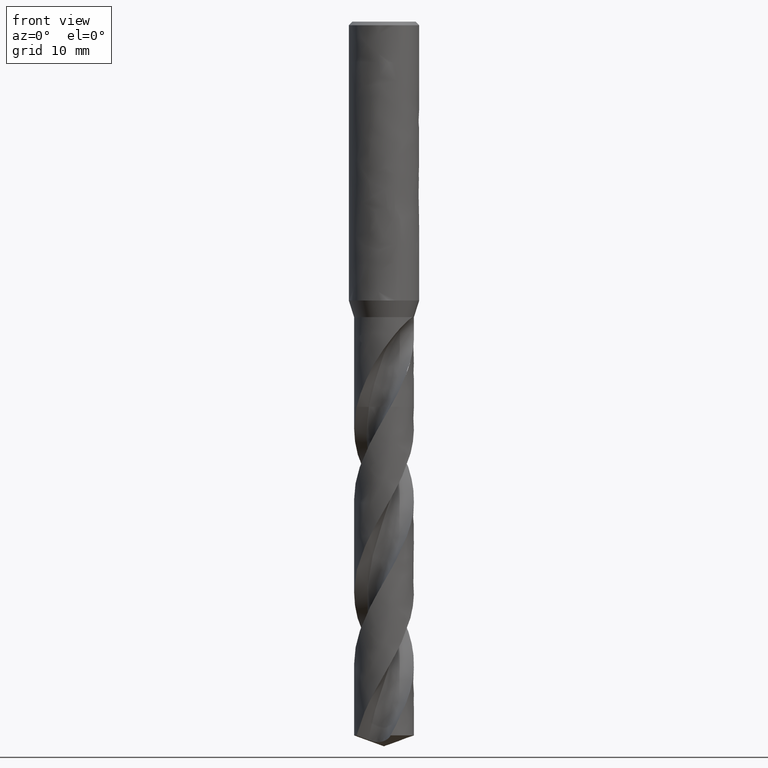
[diagram: clean part render]
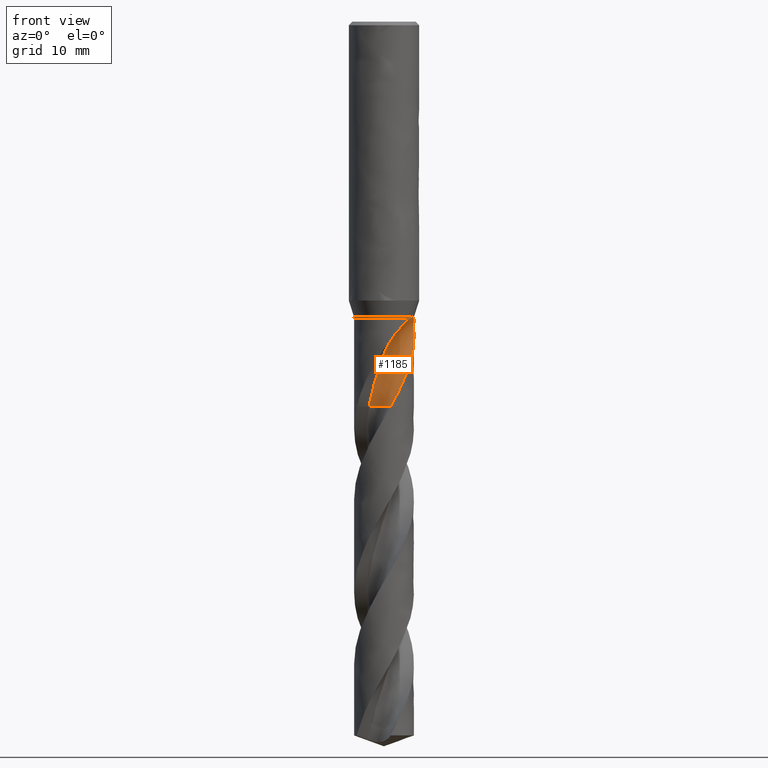
[diagram: same view with one face highlighted and labeled with its STEP entity id]
A machine part, front view. The second image highlights one B-rep face of the part: STEP entity #1185.
In plain terms, the highlighted face is a freeform B-spline surface patch.
Its self-contained STEP definition (entity closure, byte-faithful):
#72 = EDGE_CURVE('', #73, #75, #77, .T.);
#73 = VERTEX_POINT('', #74);
#74 = CARTESIAN_POINT('', (4.11830593150492, -1.07511443902793, -41.98));
#75 = VERTEX_POINT('', #76);
#76 = CARTESIAN_POINT('', (4.15782311979658, -0.880344764558207, -42.));
#77 = B_SPLINE_CURVE_WITH_KNOTS('', 3, (#78, #79, #80, #81, #82, #83, #84), .UNSPECIFIED., .F., .U., (4, 3, 4), (0., 0.131364645075957, 0.200062876313065), .UNSPECIFIED.);
#78 = CARTESIAN_POINT('', (4.1183059315064, -1.07511443902224, -41.98));
#79 = CARTESIAN_POINT('', (4.12934498438511, -1.03274060089958, -41.9800702096805));
#80 = CARTESIAN_POINT('', (4.13897011005961, -0.989858593231619, -41.9827122438814));
#81 = CARTESIAN_POINT('', (4.14686525815297, -0.947169279926214, -41.9884303678045));
#82 = CARTESIAN_POINT('', (4.15099409136418, -0.924844549287218, -41.9914207081604));
#83 = CARTESIAN_POINT('', (4.15466048327488, -0.902523422704084, -41.995257864372));
#84 = CARTESIAN_POINT('', (4.15782311979659, -0.88034476455822, -42.));
#153 = VERTEX_POINT('', #154);
#154 = CARTESIAN_POINT('', (4.04962106803154, -1.28960040530199, -42.));
#161 = EDGE_CURVE('', #162, #153, #164, .T.);
#162 = VERTEX_POINT('', #163);
#163 = CARTESIAN_POINT('', (4.11739336504455, -1.07860404225186, -41.98));
#164 = B_SPLINE_CURVE_WITH_KNOTS('', 3, (#165, #166, #167, #168, #169, #170, #171), .UNSPECIFIED., .F., .U., (4, 3, 4), (0., 0.131929166788535, 0.222770541195144), .UNSPECIFIED.);
#165 = CARTESIAN_POINT('', (4.11739336503619, -1.07860404228379, -41.98));
#166 = CARTESIAN_POINT('', (4.10622770094594, -1.12113927209462, -41.980070382125));
#167 = CARTESIAN_POINT('', (4.09359591635102, -1.16335660667235, -41.9827105738308));
#168 = CARTESIAN_POINT('', (4.07978896255289, -1.20484215297739, -41.9874265316199));
#169 = CARTESIAN_POINT('', (4.07028202265535, -1.23340751222353, -41.990673759641));
#170 = CARTESIAN_POINT('', (4.060199148871, -1.26168776083138, -41.9949113234228));
#171 = CARTESIAN_POINT('', (4.04962106803153, -1.28960040530201, -42.));
#173 = EDGE_CURVE('', #73, #162, #174, .T.);
#174 = LINE('', #175, #176);
#175 = CARTESIAN_POINT('', (4.11830593150492, -1.07511443902793, -41.98));
#176 = VECTOR('', #177, 0.00360695275890709);
#177 = DIRECTION('', (-0.000912566460366193, -0.00348960322392133, 0.));
#1127 = VERTEX_POINT('', #1128);
#1128 = CARTESIAN_POINT('', (3.73255713747948, -2.03236739184898, -48.3463346180256));
#1129 = VERTEX_POINT('', #1130);
#1130 = CARTESIAN_POINT('', (3.06516109353695, -2.94402572520473, -50.329358537222));
#1164 = EDGE_CURVE('', #1129, #1127, #1165, .T.);
#1165 = B_SPLINE_CURVE_WITH_KNOTS('', 3, (#1166, #1167, #1168, #1169, #1170, #1171), .UNSPECIFIED., .F., .U., (4, 1, 1, 4), (52.720641462778, 53.2405128205128, 54.0234615384615, 54.7036653819744), .UNSPECIFIED.);
#1166 = CARTESIAN_POINT('', (3.06516109353692, -2.94402572520472, -50.329358537222));
#1167 = CARTESIAN_POINT('', (3.12369965963897, -2.86283246989052, -50.1560680846437));
#1168 = CARTESIAN_POINT('', (3.2591040498341, -2.65194063212582, -49.7217947260826));
#1169 = CARTESIAN_POINT('', (3.42516939304803, -2.31711624745014, -49.0607867530171));
#1170 = CARTESIAN_POINT('', (3.6244875176783, -2.12077061952601, -48.5730692325299));
#1171 = CARTESIAN_POINT('', (3.73255713747948, -2.03236739184898, -48.3463346180256));
#1185 = ADVANCED_FACE('', (#1186), #1435, .T.);
#1186 = FACE_OUTER_BOUND('', #1187, .T.);
#1187 = EDGE_LOOP('', (#1188, #1199, #1239, #1240, #1358, #1359, #1360, #1361, #1415));
#1188 = ORIENTED_EDGE('', *, *, #1189, .T.);
#1189 = EDGE_CURVE('', #1190, #1192, #1194, .T.);
#1190 = VERTEX_POINT('', #1191);
#1191 = CARTESIAN_POINT('', (-2.16388832191356, -1.3388304660548, -54.75));
#1192 = VERTEX_POINT('', #1193);
#1193 = CARTESIAN_POINT('', (0.900482394054545, -4.15350833127824, -54.75));
#1194 = CIRCLE('', #1195, 2.55021251610552);
#1195 = AXIS2_PLACEMENT_3D('', #1196, #1197, #1198);
#1196 = CARTESIAN_POINT('', (-1.62943548012025, -3.83241122064755, -54.75));
#1197 = DIRECTION('', (4.92565560928564E-15, 6.75469816738731E-15, -1.));
#1198 = DIRECTION('', (-0.209571868890377, 0.977793245921547, 5.5724193947616E-15));
#1199 = ORIENTED_EDGE('', *, *, #1200, .F.);
#1200 = EDGE_CURVE('', #1129, #1192, #1201, .T.);
#1201 = B_SPLINE_CURVE_WITH_KNOTS('', 3, (#1202, #1203, #1204, #1205, #1206, #1207, #1208, #1209, #1210, #1211, #1212, #1213, #1214, #1215, #1216, #1217, #1218, #1219, #1220, #1221, #1222, #1223, #1224, #1225, #1226, #1227, #1228, #1229, #1230, #1231, #1232, #1233, #1234, #1235, #1236, #1237, #1238), .UNSPECIFIED., .F., .U., (4, 3, 3, 3, 3, 3, 3, 3, 3, 3, 3, 3, 4), (0., 0.295571667884022, 0.738861036090193, 1.18213290757928, 1.62536798512298, 2.06854758775916, 2.51170228880951, 2.95486686415593, 3.39796791211283, 3.84103284195719, 4.28407376025169, 4.94826991755467, 5.0866072862183), .UNSPECIFIED.);
#1202 = CARTESIAN_POINT('', (3.06516109353694, -2.94402572520474, -50.329358537222));
#1203 = CARTESIAN_POINT('', (3.03261850275037, -2.97790731880221, -50.4159609284243));
#1204 = CARTESIAN_POINT('', (2.99940555434913, -3.01136245995872, -50.5024820743763));
#1205 = CARTESIAN_POINT('', (2.96552159122797, -3.04436884952542, -50.5889078347301));
#1206 = CARTESIAN_POINT('', (2.91470345729846, -3.09387082541687, -50.7185265528509));
#1207 = CARTESIAN_POINT('', (2.86236559449061, -3.14237169335536, -50.8479450374589));
#1208 = CARTESIAN_POINT('', (2.80857506322683, -3.18973448961228, -50.9771630111221));
#1209 = CARTESIAN_POINT('', (2.75478665508573, -3.23709541645047, -51.1063758845268));
#1210 = CARTESIAN_POINT('', (2.69953726249105, -3.28332577995616, -51.2354086190697));
#1211 = CARTESIAN_POINT('', (2.64290451293097, -3.32829622112129, -51.3642597269171));
#1212 = CARTESIAN_POINT('', (2.58627646419318, -3.37326292949833, -51.4931001394308));
#1213 = CARTESIAN_POINT('', (2.52825662244168, -3.41697679554097, -51.6217800861337));
#1214 = CARTESIAN_POINT('', (2.46893279176026, -3.4593165321739, -51.7502970985403));
#1215 = CARTESIAN_POINT('', (2.40961638599664, -3.50165096960311, -51.8787980258722));
#1216 = CARTESIAN_POINT('', (2.34898676502986, -3.54261863624505, -52.007157407415));
#1217 = CARTESIAN_POINT('', (2.28713270504749, -3.58211166625258, -52.1353662400079));
#1218 = CARTESIAN_POINT('', (2.22528212055039, -3.621602477207, -52.2635678687421));
#1219 = CARTESIAN_POINT('', (2.16218703814856, -3.65963015213111, -52.3916343028312));
#1220 = CARTESIAN_POINT('', (2.09801078762549, -3.69605881108613, -52.5195992911604));
#1221 = CARTESIAN_POINT('', (2.03383310713834, -3.73248828173821, -52.6475671307832));
#1222 = CARTESIAN_POINT('', (1.968562758957, -3.76732322801114, -52.7754553704605));
#1223 = CARTESIAN_POINT('', (1.90246561453969, -3.80041110743221, -52.9033538017164));
#1224 = CARTESIAN_POINT('', (1.83637794511039, -3.8334942437246, -53.0312338988051));
#1225 = CARTESIAN_POINT('', (1.76948214748931, -3.86482581254872, -53.1591639436563));
#1226 = CARTESIAN_POINT('', (1.7018624730335, -3.89437596064893, -53.2871083126714));
#1227 = CARTESIAN_POINT('', (1.63424831040174, -3.92392370005347, -53.4150422526679));
#1228 = CARTESIAN_POINT('', (1.56589685490049, -3.95169674991065, -53.5430108086235));
#1229 = CARTESIAN_POINT('', (1.49686551966453, -3.97767439794152, -53.6709626489919));
#1230 = CARTESIAN_POINT('', (1.42783792552663, -4.0036506381345, -53.7989075551126));
#1231 = CARTESIAN_POINT('', (1.35810959800893, -4.02783844408278, -53.9268519307771));
#1232 = CARTESIAN_POINT('', (1.28779352300334, -4.05019602514627, -54.0547787105148));
#1233 = CARTESIAN_POINT('', (1.18237737544945, -4.08371396630196, -54.2465634238658));
#1234 = CARTESIAN_POINT('', (1.07561064363921, -4.11312493794379, -54.4383721096446));
#1235 = CARTESIAN_POINT('', (0.967905383179545, -4.13831598228211, -54.6301594423181));
#1236 = CARTESIAN_POINT('', (0.945472759685121, -4.14356271963423, -54.6701045017005));
#1237 = CARTESIAN_POINT('', (0.922995938092073, -4.14862738524019, -54.710054095086));
#1238 = CARTESIAN_POINT('', (0.900482394054545, -4.15350833127824, -54.75));
#1239 = ORIENTED_EDGE('', *, *, #1164, .T.);
#1240 = ORIENTED_EDGE('', *, *, #1241, .T.);
#1241 = EDGE_CURVE('', #1127, #75, #1242, .T.);
#1242 = B_SPLINE_CURVE_WITH_KNOTS('', 3, (#1243, #1244, #1245, #1246, #1247, #1248, #1249, #1250, #1251, #1252, #1253, #1254, #1255, #1256, #1257, #1258, #1259, #1260, #1261, #1262, #1263, #1264, #1265, #1266, #1267, #1268, #1269, #1270, #1271, #1272, #1273, #1274, #1275, #1276, #1277, #1278, #1279, #1280, #1281, #1282, #1283, #1284, #1285, #1286, #1287, #1288, #1289, #1290, #1291, #1292, #1293, #1294, #1295, #1296, #1297, #1298, #1299, #1300, #1301, #1302, #1303, #1304, #1305, #1306, #1307, #1308, #1309, #1310, #1311, #1312, #1313, #1314, #1315, #1316, #1317, #1318, #1319, #1320, #1321, #1322, #1323, #1324, #1325, #1326, #1327, #1328, #1329, #1330, #1331, #1332, #1333, #1334, #1335, #1336, #1337, #1338, #1339, #1340, #1341, #1342, #1343, #1344, #1345, #1346, #1347, #1348, #1349, #1350, #1351, #1352, #1353, #1354, #1355, #1356, #1357), .UNSPECIFIED., .F., .U., (4, 3, 3, 3, 3, 3, 3, 3, 3, 3, 3, 3, 3, 3, 3, 3, 3, 3, 3, 3, 3, 3, 3, 3, 3, 3, 3, 3, 3, 3, 3, 3, 3, 3, 3, 3, 3, 3, 4), (0., 0.196981854982804, 0.492366603504392, 0.787634984461823, 1.08276895990144, 1.37775759834243, 1.67260533327669, 1.9673160900908, 2.26189167868859, 2.55632996496586, 2.85064643401126, 3.14485765032368, 3.43898123285581, 3.73305142723269, 4.02710681471754, 4.15817625431215, 4.24563099060151, 4.5399270912329, 4.83433653855622, 5.03095121188485, 5.22767940404977, 5.42457051350553, 5.55594551110714, 5.75325638878738, 5.84093164236951, 5.89937418972179, 6.09752620466671, 6.22959936868908, 6.36186755673875, 6.44990303506425, 6.50850638847067, 6.64128983080496, 6.77424440716531, 6.90728944785641, 7.0403219699544, 7.17324071539208, 7.30596926377949, 7.43846656770985, 7.55221081063855), .UNSPECIFIED.);
#1243 = CARTESIAN_POINT('', (3.73255713747948, -2.03236739184898, -48.3463346180256));
#1244 = CARTESIAN_POINT('', (3.74975883135192, -2.00077551259633, -48.2914040100518));
#1245 = CARTESIAN_POINT('', (3.76667110829638, -1.96875926325414, -48.2366244019477));
#1246 = CARTESIAN_POINT('', (3.78325121746856, -1.93636520974832, -48.1819705633225));
#1247 = CARTESIAN_POINT('', (3.8081139713436, -1.88778860684624, -48.1000142309515));
#1248 = CARTESIAN_POINT('', (3.83223191330587, -1.83835545745204, -48.0183320395202));
#1249 = CARTESIAN_POINT('', (3.85547771049736, -1.78823701557093, -47.9368307635068));
#1250 = CARTESIAN_POINT('', (3.87871434994862, -1.73813831797598, -47.855361595126));
#1251 = CARTESIAN_POINT('', (3.90108236723052, -1.68734847246666, -47.7740624107607));
#1252 = CARTESIAN_POINT('', (3.92247595082462, -1.63605697186941, -47.6928309952994));
#1253 = CARTESIAN_POINT('', (3.94385979610649, -1.58478881905046, -47.6116365561999));
#1254 = CARTESIAN_POINT('', (3.96427264737088, -1.53301308237179, -47.530499614143));
#1255 = CARTESIAN_POINT('', (3.98363228215927, -1.48093681179802, -47.4493115863483));
#1256 = CARTESIAN_POINT('', (4.00298238340884, -1.42888618587886, -47.3681635391227));
#1257 = CARTESIAN_POINT('', (4.02128191427265, -1.37653084587621, -47.2869527920002));
#1258 = CARTESIAN_POINT('', (4.0384749179293, -1.32409226916349, -47.2055691576314));
#1259 = CARTESIAN_POINT('', (4.05565970922048, -1.27167874012511, -47.1242243967579));
#1260 = CARTESIAN_POINT('', (4.07174146892771, -1.21917512944479, -47.0426963541764));
#1261 = CARTESIAN_POINT('', (4.0866947523439, -1.16680161174286, -46.9608863354859));
#1262 = CARTESIAN_POINT('', (4.1016410888773, -1.11445242533181, -46.8791143234722));
#1263 = CARTESIAN_POINT('', (4.11546228694838, -1.0622256195914, -46.7970491044932));
#1264 = CARTESIAN_POINT('', (4.12816037534308, -1.01034247433607, -46.7146028187553));
#1265 = CARTESIAN_POINT('', (4.14085263979712, -0.958483125131737, -46.6321943467624));
#1266 = CARTESIAN_POINT('', (4.15242511356934, -0.906957367121315, -46.5493929527317));
#1267 = CARTESIAN_POINT('', (4.16290243033057, -0.856004296454071, -46.4661123886357));
#1268 = CARTESIAN_POINT('', (4.17337486359175, -0.805074975123536, -46.3828706417912));
#1269 = CARTESIAN_POINT('', (4.18275516455306, -0.754708549565484, -46.2991348867065));
#1270 = CARTESIAN_POINT('', (4.19109365843658, -0.705148173232166, -46.2148324865937));
#1271 = CARTESIAN_POINT('', (4.19942870245542, -0.655608301392104, -46.1305649647067));
#1272 = CARTESIAN_POINT('', (4.20672471318963, -0.606862805952498, -46.0457133262881));
#1273 = CARTESIAN_POINT('', (4.21305541171341, -0.559163748675057, -45.9602182428227));
#1274 = CARTESIAN_POINT('', (4.21938384626832, -0.511481749417357, -45.8747537338992));
#1275 = CARTESIAN_POINT('', (4.22474936091984, -0.464832409387022, -45.7886246112973));
#1276 = CARTESIAN_POINT('', (4.2292469429073, -0.419488135600253, -45.7017829564669));
#1277 = CARTESIAN_POINT('', (4.23374318524458, -0.374157368063097, -45.6149671682999));
#1278 = CARTESIAN_POINT('', (4.23737352522732, -0.330116688412887, -45.5274121515397));
#1279 = CARTESIAN_POINT('', (4.24025417425521, -0.287653502867219, -45.4390908319718));
#1280 = CARTESIAN_POINT('', (4.24313430039903, -0.245198025071887, -45.3507855441423));
#1281 = CARTESIAN_POINT('', (4.24526625260626, -0.204302378325547, -45.2616804730407));
#1282 = CARTESIAN_POINT('', (4.24678494543823, -0.165280450142151, -45.1717718011952));
#1283 = CARTESIAN_POINT('', (4.24830356180166, -0.126260486773579, -45.0818676563912));
#1284 = CARTESIAN_POINT('', (4.24920980749626, -0.0890940078819177, -44.9911167445184));
#1285 = CARTESIAN_POINT('', (4.24965510038525, -0.0541435847503152, -44.8995422468292));
#1286 = CARTESIAN_POINT('', (4.24985358098415, -0.038565116990769, -44.8587247049506));
#1287 = CARTESIAN_POINT('', (4.24996075569739, -0.0234245272107696, -44.8177364515068));
#1288 = CARTESIAN_POINT('', (4.2499909779513, -0.0087571303857312, -44.7765822739025));
#1289 = CARTESIAN_POINT('', (4.25001114343955, 0.00102953937766002, -44.7491225719253));
#1290 = CARTESIAN_POINT('', (4.24999706316362, 0.0106062290011706, -44.7215870025854));
#1291 = CARTESIAN_POINT('', (4.24995312042226, 0.0199618188821925, -44.6939774833684));
#1292 = CARTESIAN_POINT('', (4.24980524761422, 0.0514445462668044, -44.601068005956));
#1293 = CARTESIAN_POINT('', (4.24931841880978, 0.0804458174848256, -44.5072681442194));
#1294 = CARTESIAN_POINT('', (4.24866574125775, 0.106486708385267, -44.4126911861582));
#1295 = CARTESIAN_POINT('', (4.24801281233018, 0.132537628806428, -44.318077802248));
#1296 = CARTESIAN_POINT('', (4.24719391025459, 0.155653642094835, -44.2225898940301));
#1297 = CARTESIAN_POINT('', (4.24638574967411, 0.175237167760367, -44.1264306428636));
#1298 = CARTESIAN_POINT('', (4.24584603795639, 0.188315581297561, -44.0622128674915));
#1299 = CARTESIAN_POINT('', (4.24531085872464, 0.199826323473396, -43.9976506634974));
#1300 = CARTESIAN_POINT('', (4.24483066437677, 0.20955340790997, -43.9328400771332));
#1301 = CARTESIAN_POINT('', (4.2443501927805, 0.219286108444707, -43.8679920712711));
#1302 = CARTESIAN_POINT('', (4.24392467558588, 0.227241048027943, -43.8028448483458));
#1303 = CARTESIAN_POINT('', (4.24359943572462, 0.233160522210877, -43.7375373126292));
#1304 = CARTESIAN_POINT('', (4.2432739265212, 0.239084898511226, -43.6721756935265));
#1305 = CARTESIAN_POINT('', (4.24304898985903, 0.242976698920663, -43.606587552762));
#1306 = CARTESIAN_POINT('', (4.24295973463297, 0.244525438928779, -43.5409755197161));
#1307 = CARTESIAN_POINT('', (4.24290017935319, 0.245558831017504, -43.497196089005));
#1308 = CARTESIAN_POINT('', (4.24290079411054, 0.245548772403895, -43.4533768614254));
#1309 = CARTESIAN_POINT('', (4.24296756474087, 0.24438953447091, -43.4096005926429));
#1310 = CARTESIAN_POINT('', (4.24306784692481, 0.242648485883484, -43.3438534248199));
#1311 = CARTESIAN_POINT('', (4.24331951553417, 0.238313656889898, -43.2781063653065));
#1312 = CARTESIAN_POINT('', (4.24371856256266, 0.230982167625779, -43.212747192958));
#1313 = CARTESIAN_POINT('', (4.24389587944365, 0.2277244142372, -43.1837047900406));
#1314 = CARTESIAN_POINT('', (4.24410193371186, 0.223872589449036, -43.154722140773));
#1315 = CARTESIAN_POINT('', (4.24433371096907, 0.219388582045212, -43.1258440258321));
#1316 = CARTESIAN_POINT('', (4.2444882089919, 0.216399633575499, -43.1065944596099));
#1317 = CARTESIAN_POINT('', (4.2446541393175, 0.213128997554078, -43.0873864073882));
#1318 = CARTESIAN_POINT('', (4.24483008508856, 0.209565141965618, -43.0682351291341));
#1319 = CARTESIAN_POINT('', (4.24542663692684, 0.197481733595871, -43.0033018819239));
#1320 = CARTESIAN_POINT('', (4.24614545025842, 0.181997113649504, -42.9388785366773));
#1321 = CARTESIAN_POINT('', (4.24688578620167, 0.162668739953938, -42.8757235123469));
#1322 = CARTESIAN_POINT('', (4.24737923821372, 0.149785906185683, -42.8336291440936));
#1323 = CARTESIAN_POINT('', (4.24788183774532, 0.135170014374823, -42.7920181664398));
#1324 = CARTESIAN_POINT('', (4.24834169891317, 0.118713138597129, -42.7511879508296));
#1325 = CARTESIAN_POINT('', (4.2488022391287, 0.102231961999394, -42.7102974438412));
#1326 = CARTESIAN_POINT('', (4.24922095351588, 0.0838678686436673, -42.6701058390267));
#1327 = CARTESIAN_POINT('', (4.24952470499941, 0.0635592762677129, -42.6309734527993));
#1328 = CARTESIAN_POINT('', (4.24972687687111, 0.0500422192164487, -42.6049275955879));
#1329 = CARTESIAN_POINT('', (4.24987794987779, 0.0356467285382171, -42.5793165212412));
#1330 = CARTESIAN_POINT('', (4.24995116703172, 0.0203734593808115, -42.5542593811178));
#1331 = CARTESIAN_POINT('', (4.24999990614041, 0.0102063675772838, -42.5375793736262));
#1332 = CARTESIAN_POINT('', (4.25001409910326, -0.000356220807430866, -42.5211335223915));
#1333 = CARTESIAN_POINT('', (4.24998495304397, -0.0113092395800213, -42.5049586866446));
#1334 = CARTESIAN_POINT('', (4.24991891392064, -0.0361265828212911, -42.4683097536942));
#1335 = CARTESIAN_POINT('', (4.24963052688225, -0.0630160656696923, -42.43297175774));
#1336 = CARTESIAN_POINT('', (4.24900779272432, -0.0918301550036348, -42.3993799487511));
#1337 = CARTESIAN_POINT('', (4.24838425597383, -0.120681380527364, -42.3657448459492));
#1338 = CARTESIAN_POINT('', (4.24742220904915, -0.15156250291926, -42.3337482492437));
#1339 = CARTESIAN_POINT('', (4.24600679705849, -0.184190877442645, -42.3037901462054));
#1340 = CARTESIAN_POINT('', (4.24459042199982, -0.216841452811954, -42.2738116592148));
#1341 = CARTESIAN_POINT('', (4.24271360213666, -0.251360696081363, -42.2457667878443));
#1342 = CARTESIAN_POINT('', (4.24027500442189, -0.287346283906585, -42.219962397083));
#1343 = CARTESIAN_POINT('', (4.23783663616184, -0.323328485743651, -42.1941604343316));
#1344 = CARTESIAN_POINT('', (4.23482670951915, -0.360907037279575, -42.1705035538117));
#1345 = CARTESIAN_POINT('', (4.23117160947046, -0.399608322249609, -42.1491668118875));
#1346 = CARTESIAN_POINT('', (4.22751963546246, -0.438276507772352, -42.1278483183073));
#1347 = CARTESIAN_POINT('', (4.22321061613679, -0.478197570252994, -42.1087695991931));
#1348 = CARTESIAN_POINT('', (4.2182051275406, -0.518888718310784, -42.0919702180153));
#1349 = CARTESIAN_POINT('', (4.21320680143427, -0.559521640297394, -42.0751948755293));
#1350 = CARTESIAN_POINT('', (4.20749871386839, -0.601047410275779, -42.0606366950742));
#1351 = CARTESIAN_POINT('', (4.20107350747437, -0.643025182086236, -42.0482264926108));
#1352 = CARTESIAN_POINT('', (4.19465949530632, -0.684929818710869, -42.0358379116491));
#1353 = CARTESIAN_POINT('', (4.1875142600448, -0.72739654233988, -42.025553355297));
#1354 = CARTESIAN_POINT('', (4.17965514543489, -0.770053806717177, -42.0172342703489));
#1355 = CARTESIAN_POINT('', (4.17290837387897, -0.806673557444751, -42.0100926305479));
#1356 = CARTESIAN_POINT('', (4.1656240999844, -0.843501135689416, -42.0043840402271));
#1357 = CARTESIAN_POINT('', (4.15782311979659, -0.880344764558211, -42.));
#1358 = ORIENTED_EDGE('', *, *, #72, .F.);
#1359 = ORIENTED_EDGE('', *, *, #173, .T.);
#1360 = ORIENTED_EDGE('', *, *, #161, .T.);
#1361 = ORIENTED_EDGE('', *, *, #1362, .F.);
#1362 = EDGE_CURVE('', #1363, #153, #1365, .T.);
#1363 = VERTEX_POINT('', #1364);
#1364 = CARTESIAN_POINT('', (1.49548155998255, -3.97819493033614, -44.5140707251629));
#1365 = B_SPLINE_CURVE_WITH_KNOTS('', 3, (#1366, #1367, #1368, #1369, #1370, #1371, #1372, #1373, #1374, #1375, #1376, #1377, #1378, #1379, #1380, #1381, #1382, #1383, #1384, #1385, #1386, #1387, #1388, #1389, #1390, #1391, #1392, #1393, #1394, #1395, #1396, #1397, #1398, #1399, #1400, #1401, #1402, #1403, #1404, #1405, #1406, #1407, #1408, #1409, #1410, #1411, #1412, #1413, #1414), .UNSPECIFIED., .F., .U., (4, 3, 3, 3, 3, 3, 3, 3, 3, 3, 3, 3, 3, 3, 3, 3, 4), (0., 0.449026659001153, 0.898442511260832, 1.34816763628277, 1.79811093115116, 2.09661974685294, 2.39513576945108, 2.69363552193259, 2.99208915622125, 3.29045725291203, 3.5886859062469, 3.78679201454082, 3.98480288425603, 4.18268881062946, 4.38041114054319, 4.57791978933696, 4.68195710095419), .UNSPECIFIED.);
#1366 = CARTESIAN_POINT('', (1.49548155998255, -3.97819493033614, -44.5140707251629));
#1367 = CARTESIAN_POINT('', (1.58583559840338, -3.944229073787, -44.3996799934759));
#1368 = CARTESIAN_POINT('', (1.67753799689756, -3.90623913027055, -44.2874395362748));
#1369 = CARTESIAN_POINT('', (1.76997630563924, -3.86389491025256, -44.1775992100097));
#1370 = CARTESIAN_POINT('', (1.86249473516188, -3.82151398843828, -44.0676636797882));
#1371 = CARTESIAN_POINT('', (1.95584969137038, -3.77472467819139, -43.9600029771215));
#1372 = CARTESIAN_POINT('', (2.04936429921718, -3.72325206897062, -43.8548972600576));
#1373 = CARTESIAN_POINT('', (2.14294326064861, -3.67174403804421, -43.7497192128004));
#1374 = CARTESIAN_POINT('', (2.2368014464995, -3.61548001582155, -43.646964458807));
#1375 = CARTESIAN_POINT('', (2.33021354800545, -3.55423758641594, -43.5469841355925));
#1376 = CARTESIAN_POINT('', (2.42367096542263, -3.49296544719277, -43.4469553101028));
#1377 = CARTESIAN_POINT('', (2.51681671167044, -3.42662008886737, -43.3495555728678));
#1378 = CARTESIAN_POINT('', (2.60885023056633, -3.35505595698104, -43.2552012604539));
#1379 = CARTESIAN_POINT('', (2.66990862846626, -3.3075776980543, -43.1926031633686));
#1380 = CARTESIAN_POINT('', (2.73053259977145, -3.25776117957976, -43.1312900743155));
#1381 = CARTESIAN_POINT('', (2.7904764931567, -3.20557965758767, -43.0714181009729));
#1382 = CARTESIAN_POINT('', (2.85042183376697, -3.15339687577743, -43.0115446821418));
#1383 = CARTESIAN_POINT('', (2.90973653025357, -3.09880576718972, -42.9530626777188));
#1384 = CARTESIAN_POINT('', (2.96816221341631, -3.04179438405156, -42.8961640432843));
#1385 = CARTESIAN_POINT('', (3.02658471218488, -2.9847861082235, -42.8392685100147));
#1386 = CARTESIAN_POINT('', (3.08417259254073, -2.92530458570042, -42.7839027338145));
#1387 = CARTESIAN_POINT('', (3.14065157166458, -2.86335602141975, -42.7303048431659));
#1388 = CARTESIAN_POINT('', (3.19712182478974, -2.80141702818835, -42.6767152333881));
#1389 = CARTESIAN_POINT('', (3.25254343141461, -2.73694560673174, -42.6248352486545));
#1390 = CARTESIAN_POINT('', (3.30662230511573, -2.66997170983348, -42.5749639422734));
#1391 = CARTESIAN_POINT('', (3.36068567966917, -2.60301700783052, -42.5251069291401));
#1392 = CARTESIAN_POINT('', (3.41347365428199, -2.5334780517482, -42.4771947462628));
#1393 = CARTESIAN_POINT('', (3.46466744164631, -2.46141819258654, -42.4316088363796));
#1394 = CARTESIAN_POINT('', (3.51583730341808, -2.38939201084783, -42.386044231228));
#1395 = CARTESIAN_POINT('', (3.56548910244003, -2.31474075900835, -42.3427352561233));
#1396 = CARTESIAN_POINT('', (3.61327308565869, -2.23757851447822, -42.3021774231061));
#1397 = CARTESIAN_POINT('', (3.64501483430817, -2.18632149473798, -42.2752358319142));
#1398 = CARTESIAN_POINT('', (3.67596231826213, -2.13390895188299, -42.2494843548293));
#1399 = CARTESIAN_POINT('', (3.706003612784, -2.08039352576188, -42.2251062948889));
#1400 = CARTESIAN_POINT('', (3.73603046509498, -2.02690382692989, -42.2007399545861));
#1401 = CARTESIAN_POINT('', (3.76517913108546, -1.97226335284676, -42.1777231820122));
#1402 = CARTESIAN_POINT('', (3.79332890385642, -1.91654789326211, -42.1562789255128));
#1403 = CARTESIAN_POINT('', (3.82146091433643, -1.86086758970561, -42.134848200175));
#1404 = CARTESIAN_POINT('', (3.84862527656984, -1.80405326202827, -42.114964527293));
#1405 = CARTESIAN_POINT('', (3.87469132017912, -1.7462150993874, -42.0969010138146));
#1406 = CARTESIAN_POINT('', (3.90073581444161, -1.68842475277276, -42.0788524338229));
#1407 = CARTESIAN_POINT('', (3.92571720152216, -1.62953634330821, -42.0625971434777));
#1408 = CARTESIAN_POINT('', (3.94949401412514, -1.56971240435619, -42.0484709057035));
#1409 = CARTESIAN_POINT('', (3.97324513081431, -1.50995311792107, -42.03435993434));
#1410 = CARTESIAN_POINT('', (3.99583171218261, -1.44916291452414, -42.0223505784438));
#1411 = CARTESIAN_POINT('', (4.01710183240695, -1.38758526515409, -42.0128541340703));
#1412 = CARTESIAN_POINT('', (4.02830582848221, -1.35514935343431, -42.0078518997449));
#1413 = CARTESIAN_POINT('', (4.03915329302633, -1.3224714574684, -42.003543989462));
#1414 = CARTESIAN_POINT('', (4.04962106803154, -1.28960040530199, -42.));
#1415 = ORIENTED_EDGE('', *, *, #1416, .F.);
#1416 = EDGE_CURVE('', #1190, #1363, #1417, .T.);
#1417 = (
   BOUNDED_CURVE ()
   B_SPLINE_CURVE (3, (#1418, #1419, #1420, #1421, #1422, #1423, #1424, #1425, #1426, #1427, #1428, #1429, #1430, #1431, #1432, #1433, #1434), .UNSPECIFIED., .F., .U.)
   B_SPLINE_CURVE_WITH_KNOTS ((4, 1, 1, 1, 1, 1, 1, 1, 1, 1, 1, 1, 1, 1, 4), (48.3, 48.5428205128205, 49.3257692307692, 50.1087179487179, 50.8916666666667, 51.6746153846154, 52.4575641025641, 53.2405128205128, 54.0234615384615, 54.8064102564103, 55.589358974359, 56.3723076923077, 57.1552564102564, 57.9382051282051, 58.5359292748371), .UNSPECIFIED.)
   CURVE ()
   GEOMETRIC_REPRESENTATION_ITEM ()
   RATIONAL_B_SPLINE_CURVE ((1., 1., 1., 1., 1., 1., 1., 1., 1., 1., 1., 1., 1., 1., 1., 1., 1.))
   REPRESENTATION_ITEM ('')
);
#1418 = CARTESIAN_POINT('', (-2.16388832191356, -1.3388304660548, -54.75));
#1419 = CARTESIAN_POINT('', (-2.1499282694668, -1.36275844577589, -54.6690598290598));
#1420 = CARTESIAN_POINT('', (-2.08929820506933, -1.4629346500768, -54.3271367521368));
#1421 = CARTESIAN_POINT('', (-1.97026979741844, -1.63245956510927, -53.7242307692308));
#1422 = CARTESIAN_POINT('', (-1.79262360835355, -1.83518726069426, -52.9412820512821));
#1423 = CARTESIAN_POINT('', (-1.59589030490003, -2.02134713020845, -52.1583333333333));
#1424 = CARTESIAN_POINT('', (-1.37103892720608, -2.17337592883037, -51.3753846153846));
#1425 = CARTESIAN_POINT('', (-1.1248651654678, -2.28584076325315, -50.5924358974359));
#1426 = CARTESIAN_POINT('', (-0.862994684532405, -2.35257035656935, -49.8094871794872));
#1427 = CARTESIAN_POINT('', (-0.601497331631492, -2.38343698197448, -49.0265384615385));
#1428 = CARTESIAN_POINT('', (-0.362408982784956, -2.5056263948703, -48.2435897435898));
#1429 = CARTESIAN_POINT('', (-0.10647694121332, -2.6982645477435, -47.460641025641));
#1430 = CARTESIAN_POINT('', (0.192570056308582, -2.96477551724825, -46.6776923076923));
#1431 = CARTESIAN_POINT('', (0.563785027819765, -3.29398948742809, -45.8947435897436));
#1432 = CARTESIAN_POINT('', (0.996304664673433, -3.64103371550094, -45.1735363955671));
#1433 = CARTESIAN_POINT('', (1.33541933359431, -3.87595411986078, -44.7133121073736));
#1434 = CARTESIAN_POINT('', (1.49548155998254, -3.97819493033614, -44.5140707251629));
#1435 = (
   BOUNDED_SURFACE ()
   B_SPLINE_SURFACE (3, 2, ((#1436, #1437, #1438, #1439, #1440), (#1441, #1442, #1443, #1444, #1445), (#1446, #1447, #1448, #1449, #1450), (#1451, #1452, #1453, #1454, #1455), (#1456, #1457, #1458, #1459, #1460), (#1461, #1462, #1463, #1464, #1465), (#1466, #1467, #1468, #1469, #1470), (#1471, #1472, #1473, #1474, #1475), (#1476, #1477, #1478, #1479, #1480), (#1481, #1482, #1483, #1484, #1485), (#1486, #1487, #1488, #1489, #1490), (#1491, #1492, #1493, #1494, #1495), (#1496, #1497, #1498, #1499, #1500), (#1501, #1502, #1503, #1504, #1505), (#1506, #1507, #1508, #1509, #1510), (#1511, #1512, #1513, #1514, #1515), (#1516, #1517, #1518, #1519, #1520), (#1521, #1522, #1523, #1524, #1525), (#1526, #1527, #1528, #1529, #1530)), .UNSPECIFIED., .F., .F., .U.)
   B_SPLINE_SURFACE_WITH_KNOTS ((4, 1, 1, 1, 1, 1, 1, 1, 1, 1, 1, 1, 1, 1, 1, 1, 4), (3, 2, 3), (48.3, 48.5428205128205, 49.3257692307692, 50.1087179487179, 50.8916666666667, 51.6746153846154, 52.4575641025641, 53.2405128205128, 54.0234615384615, 54.8064102564103, 55.589358974359, 56.3723076923077, 57.1552564102564, 57.9382051282051, 58.7211538461538, 59.5041025641026, 61.07), (0., 0.5, 1.), .UNSPECIFIED.)
   GEOMETRIC_REPRESENTATION_ITEM ()
   RATIONAL_B_SPLINE_SURFACE (((1., 0.887010833178222, 1., 0.887010833178222, 1.), (1., 0.887010833178222, 1., 0.887010833178222, 1.), (1., 0.887010833178222, 1., 0.887010833178222, 1.), (1., 0.887010833178221, 1., 0.887010833178221, 1.), (1., 0.887010833178222, 1., 0.887010833178222, 1.), (1., 0.887010833178222, 1., 0.887010833178222, 1.), (1., 0.887010833178222, 1., 0.887010833178222, 1.), (1., 0.887010833178222, 1., 0.887010833178222, 1.), (1., 0.887010833178222, 1., 0.887010833178222, 1.), (1., 0.887010833178221, 1., 0.887010833178221, 1.), (1., 0.887010833178222, 1., 0.887010833178222, 1.), (1., 0.887010833178222, 1., 0.887010833178222, 1.), (1., 0.887010833178222, 1., 0.887010833178222, 1.), (1., 0.887010833178222, 1., 0.887010833178222, 1.), (1., 0.887010833178222, 1., 0.887010833178222, 1.), (1., 0.887010833178222, 1., 0.887010833178222, 1.), (1., 0.887010833178222, 1., 0.887010833178222, 1.), (1., 0.887010833178222, 1., 0.887010833178222, 1.), (1., 0.887010833178222, 1., 0.887010833178222, 1.)))
   REPRESENTATION_ITEM ('')
   SURFACE ()
);
#1436 = CARTESIAN_POINT('', (0.896558087956904, -4.18304540375278, -54.75));
#1437 = CARTESIAN_POINT('', (1.07908641067627, -2.86809637882334, -54.75));
#1438 = CARTESIAN_POINT('', (0.106637173648, -1.96435415442481, -54.75));
#1439 = CARTESIAN_POINT('', (-0.865812063380267, -1.06061193002629, -54.75));
#1440 = CARTESIAN_POINT('', (-2.16388832191356, -1.3388304660548, -54.75));
#1441 = CARTESIAN_POINT('', (0.942336193202135, -4.17446860484757, -54.6690598290598));
#1442 = CARTESIAN_POINT('', (1.11060513831518, -2.85716194169512, -54.6690598290598));
#1443 = CARTESIAN_POINT('', (0.128045794124828, -1.96374802988295, -54.6690598290598));
#1444 = CARTESIAN_POINT('', (-0.854513550065522, -1.07033411807079, -54.6690598290598));
#1445 = CARTESIAN_POINT('', (-2.1499282694668, -1.36275844577589, -54.6690598290598));
#1446 = CARTESIAN_POINT('', (1.13522489741955, -4.13510112743799, -54.3271367521368));
#1447 = CARTESIAN_POINT('', (1.24306845516269, -2.80880190222792, -54.3271367521368));
#1448 = CARTESIAN_POINT('', (0.218484257026688, -1.95972764830809, -54.3271367521368));
#1449 = CARTESIAN_POINT('', (-0.806099941109311, -1.11065339438826, -54.3271367521368));
#1450 = CARTESIAN_POINT('', (-2.08929820506933, -1.4629346500768, -54.3271367521368));
#1451 = CARTESIAN_POINT('', (1.47093005922754, -4.04247256294488, -53.7242307692308));
#1452 = CARTESIAN_POINT('', (1.47104950795105, -2.70755407179777, -53.7242307692308));
#1453 = CARTESIAN_POINT('', (0.377616809941876, -1.94177843416043, -53.7242307692308));
#1454 = CARTESIAN_POINT('', (-0.715815888067301, -1.1760027965231, -53.7242307692308));
#1455 = CARTESIAN_POINT('', (-1.97026979741844, -1.63245956510927, -53.7242307692308));
#1456 = CARTESIAN_POINT('', (1.89234417398574, -3.87580168142316, -52.9412820512821));
#1457 = CARTESIAN_POINT('', (1.7518879482488, -2.54475822440357, -52.9412820512821));
#1458 = CARTESIAN_POINT('', (0.580998597972197, -1.89635806614343, -52.9412820512821));
#1459 = CARTESIAN_POINT('', (-0.589890752304402, -1.24795790788328, -52.9412820512821));
#1460 = CARTESIAN_POINT('', (-1.79262360835355, -1.83518726069426, -52.9412820512821));
#1461 = CARTESIAN_POINT('', (2.29831587223082, -3.6695432553501, -52.1583333333333));
#1462 = CARTESIAN_POINT('', (2.01758541141993, -2.35555770141817, -52.1583333333333));
#1463 = CARTESIAN_POINT('', (0.780211081463297, -1.83184748084457, -52.1583333333333));
#1464 = CARTESIAN_POINT('', (-0.457163248493336, -1.30813726027098, -52.1583333333333));
#1465 = CARTESIAN_POINT('', (-1.59589030490003, -2.02134713020845, -52.1583333333333));
#1466 = CARTESIAN_POINT('', (2.666141763839, -3.39946940024866, -51.3753846153846));
#1467 = CARTESIAN_POINT('', (2.24948747562599, -2.12519919399718, -51.3753846153846));
#1468 = CARTESIAN_POINT('', (0.966683349374942, -1.73561104209861, -51.3753846153846));
#1469 = CARTESIAN_POINT('', (-0.316120776876106, -1.34602289020004, -51.3753846153846));
#1470 = CARTESIAN_POINT('', (-1.37103892720608, -2.17337592883037, -51.3753846153846));
#1471 = CARTESIAN_POINT('', (2.98337799703584, -3.07326876485185, -50.5924358974359));
#1472 = CARTESIAN_POINT('', (2.43959500180337, -1.86045004061746, -50.5924358974359));
#1473 = CARTESIAN_POINT('', (1.13421095194106, -1.61024675102555, -50.5924358974359));
#1474 = CARTESIAN_POINT('', (-0.17117309792124, -1.36004346143364, -50.5924358974359));
#1475 = CARTESIAN_POINT('', (-1.1248651654678, -2.28584076325315, -50.5924358974359));
#1476 = CARTESIAN_POINT('', (3.23707303362052, -2.69636002334094, -49.8094871794872));
#1477 = CARTESIAN_POINT('', (2.57930828371264, -1.56652342219849, -49.8094871794872));
#1478 = CARTESIAN_POINT('', (1.27652196096478, -1.4572851104045, -49.8094871794872));
#1479 = CARTESIAN_POINT('', (-0.0262643617830782, -1.34804679861051, -49.8094871794872));
#1480 = CARTESIAN_POINT('', (-0.862994684532405, -2.35257035656935, -49.8094871794872));
#1481 = CARTESIAN_POINT('', (3.43377360738529, -2.29976825228551, -49.0265384615385));
#1482 = CARTESIAN_POINT('', (2.67655785325069, -1.26470254086054, -49.0265384615385));
#1483 = CARTESIAN_POINT('', (1.3943605459581, -1.29128807167942, -49.0265384615385));
#1484 = CARTESIAN_POINT('', (0.112163238665502, -1.31787360249831, -49.0265384615385));
#1485 = CARTESIAN_POINT('', (-0.601497331631492, -2.38343698197448, -49.0265384615385));
#1486 = CARTESIAN_POINT('', (3.76240174458949, -1.99028372101184, -48.2435897435898));
#1487 = CARTESIAN_POINT('', (2.87650952543054, -1.01058592748987, -48.2435897435897));
#1488 = CARTESIAN_POINT('', (1.56586117302529, -1.17433478072431, -48.2435897435898));
#1489 = CARTESIAN_POINT('', (0.255212820620041, -1.33808363395876, -48.2435897435897));
#1490 = CARTESIAN_POINT('', (-0.362408982784956, -2.5056263948703, -48.2435897435898));
#1491 = CARTESIAN_POINT('', (4.21209666165443, -1.69395540208397, -47.460641025641));
#1492 = CARTESIAN_POINT('', (3.16362075962917, -0.752939679547195, -47.460641025641));
#1493 = CARTESIAN_POINT('', (1.79140473532149, -1.07205641339599, -47.460641025641));
#1494 = CARTESIAN_POINT('', (0.419188711013814, -1.39117314724478, -47.460641025641));
#1495 = CARTESIAN_POINT('', (-0.10647694121332, -2.6982645477435, -47.460641025641));
#1496 = CARTESIAN_POINT('', (4.8031313610214, -1.37112244224666, -46.6776923076923));
#1497 = CARTESIAN_POINT('', (3.54804345878714, -0.461516527845021, -46.6776923076923));
#1498 = CARTESIAN_POINT('', (2.08304906823684, -0.967895829856272, -46.6776923076923));
#1499 = CARTESIAN_POINT('', (0.618054677686545, -1.47427513186752, -46.6776923076923));
#1500 = CARTESIAN_POINT('', (0.192570056308582, -2.96477551724825, -46.6776923076923));
#1501 = CARTESIAN_POINT('', (5.53424421028647, -0.969469379796364, -45.8947435897436));
#1502 = CARTESIAN_POINT('', (4.02333137719541, -0.0993903110094069, -45.8947435897436));
#1503 = CARTESIAN_POINT('', (2.44398033086408, -0.83800079535996, -45.8947435897436));
#1504 = CARTESIAN_POINT('', (0.864629284532747, -1.57661127971051, -45.8947435897436));
#1505 = CARTESIAN_POINT('', (0.563785027819765, -3.29398948742809, -45.8947435897436));
#1506 = CARTESIAN_POINT('', (6.396218176099, -0.438997663546537, -45.1117948717949));
#1507 = CARTESIAN_POINT('', (4.57764860045137, 0.367879494322341, -45.1117948717949));
#1508 = CARTESIAN_POINT('', (2.87360487063658, -0.658999766467693, -45.1117948717949));
#1509 = CARTESIAN_POINT('', (1.1695611408218, -1.68587902725773, -45.1117948717949));
#1510 = CARTESIAN_POINT('', (1.03333205660241, -3.67074367906009, -45.1117948717949));
#1511 = CARTESIAN_POINT('', (7.36815340761583, 0.269595317396553, -44.3288461538462));
#1512 = CARTESIAN_POINT('', (5.19095701645916, 0.973000452377229, -44.3288461538462));
#1513 = CARTESIAN_POINT('', (3.36597271490037, -0.406997811624128, -44.3288461538462));
#1514 = CARTESIAN_POINT('', (1.54098841334157, -1.78699607562548, -44.3288461538462));
#1515 = CARTESIAN_POINT('', (1.62464882032885, -4.07347018347922, -44.3288461538462));
#1516 = CARTESIAN_POINT('', (8.76866042377677, 1.51257774476235, -43.2849145299145));
#1517 = CARTESIAN_POINT('', (6.05114646585831, 2.00216730678639, -43.2849145299145));
#1518 = CARTESIAN_POINT('', (4.09139620354667, 0.0569272290340207, -43.2849145299145));
#1519 = CARTESIAN_POINT('', (2.13164594123503, -1.88831284871834, -43.2849145299145));
#1520 = CARTESIAN_POINT('', (2.60102675596402, -4.60939015403124, -43.2849145299145));
#1521 = CARTESIAN_POINT('', (9.87506499021799, 2.84163769892863, -42.5019658119658));
#1522 = CARTESIAN_POINT('', (6.69385905712405, 3.06109652573183, -42.5019658119658));
#1523 = CARTESIAN_POINT('', (4.68942414810813, 0.581081594137223, -42.5019658119658));
#1524 = CARTESIAN_POINT('', (2.68498923909221, -1.89893333745739, -42.5019658119658));
#1525 = CARTESIAN_POINT('', (3.56680190816417, -4.96334841738341, -42.5019658119658));
#1526 = CARTESIAN_POINT('', (10.5675831917002, 3.94598912319437, -41.98));
#1527 = CARTESIAN_POINT('', (7.06722567168101, 3.91691521705767, -41.98));
#1528 = CARTESIAN_POINT('', (5.08331902904115, 1.03291409131889, -41.98));
#1529 = CARTESIAN_POINT('', (3.09941238640128, -1.8510870344199, -41.98));
#1530 = CARTESIAN_POINT('', (4.32392570214342, -5.13040330455051, -41.98));